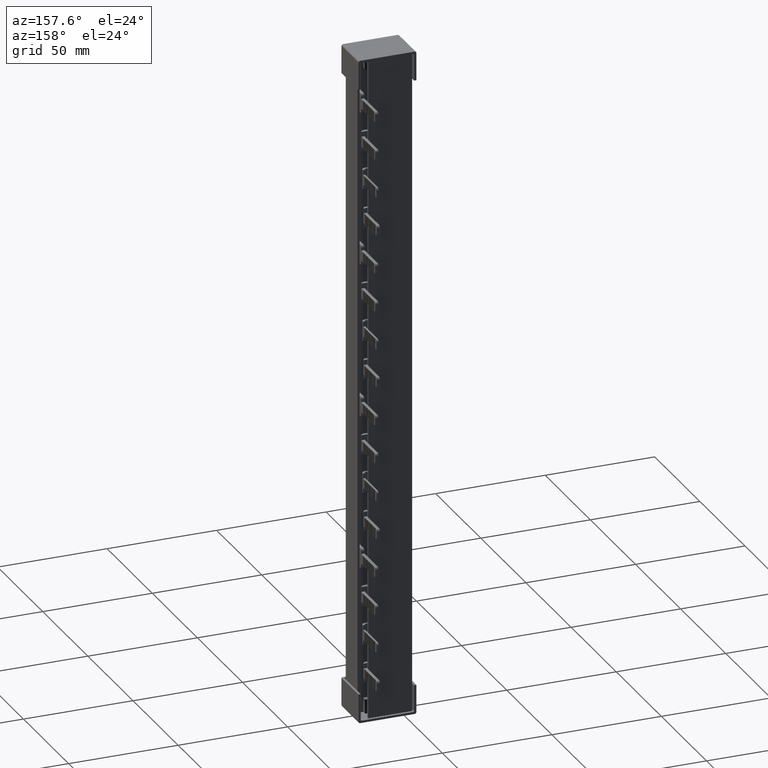
[diagram: clean part render]
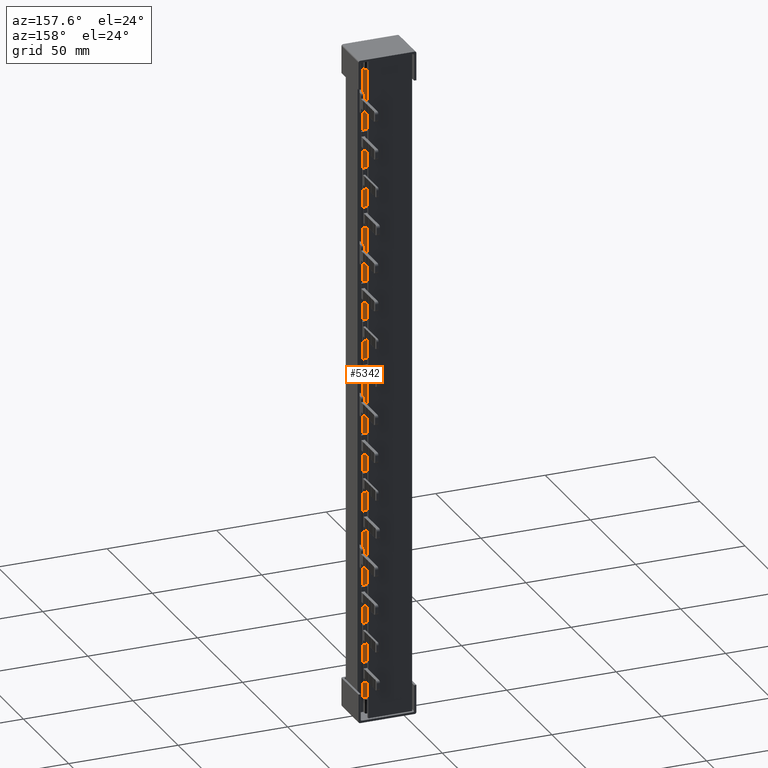
[diagram: same view with one face highlighted and labeled with its STEP entity id]
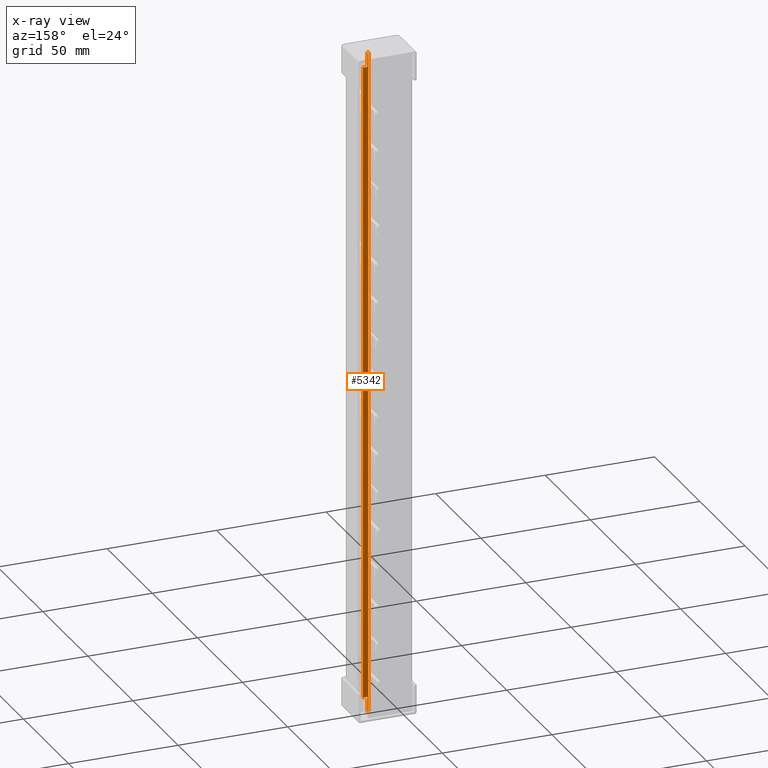
[diagram: x-ray of the same camera — body ghosted, the highlighted face saturated]
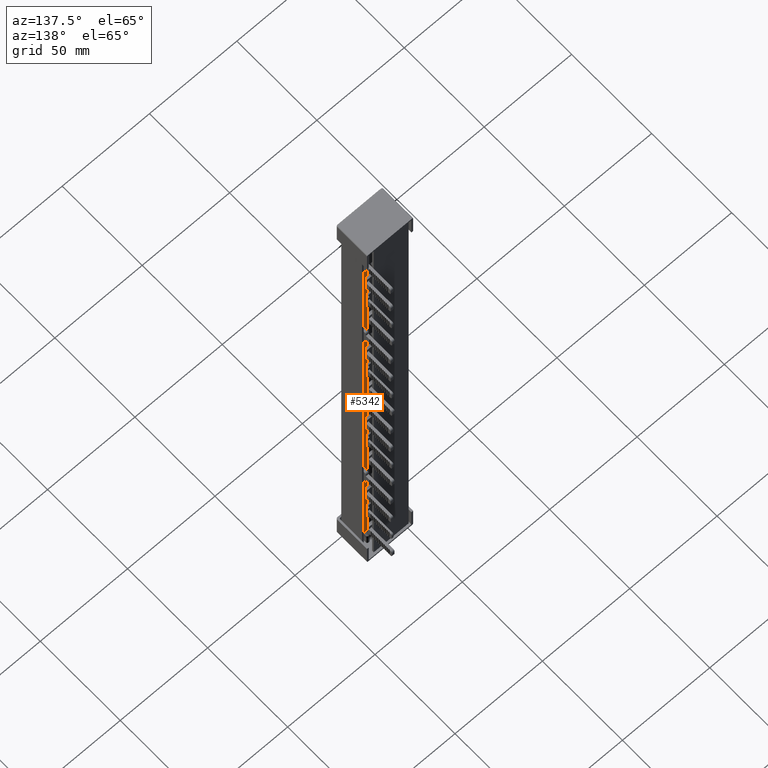
[diagram: same view with one face highlighted and labeled with its STEP entity id]
A machine part, auxiliary view. The second image highlights one B-rep face of the part: STEP entity #5342.
The next image is the same camera in x-ray: the body ghosted, the highlighted face saturated — about 0% of this face is hidden behind the body in this view.
A second angle (auxiliary view) of the same face is appended — the face is thin or edge-on in the first view.
In plain terms, the highlighted planar face has unit normal (0, -1, 0).
Its self-contained STEP definition (entity closure, byte-faithful):
#5342 = ADVANCED_FACE ( 'NONE', ( #18616 ), #18670, .F. ) ;
#5552 = EDGE_CURVE ( 'NONE', #30280, #30393, #8117, .T. ) ;
#5555 = EDGE_CURVE ( 'NONE', #30323, #30293, #8079, .T. ) ;
#5556 = EDGE_CURVE ( 'NONE', #30320, #30328, #8109, .T. ) ;
#5563 = EDGE_CURVE ( 'NONE', #30293, #30290, #8113, .T. ) ;
#5564 = EDGE_CURVE ( 'NONE', #30327, #30323, #8100, .T. ) ;
#5565 = EDGE_CURVE ( 'NONE', #30308, #30393, #8097, .T. ) ;
#5570 = EDGE_CURVE ( 'NONE', #30301, #30327, #8153, .T. ) ;
#5571 = EDGE_CURVE ( 'NONE', #30280, #30301, #8130, .T. ) ;
#5576 = EDGE_CURVE ( 'NONE', #30328, #30338, #8164, .T. ) ;
#5583 = EDGE_CURVE ( 'NONE', #30317, #30308, #8171, .T. ) ;
#5586 = EDGE_CURVE ( 'NONE', #30338, #30317, #8175, .T. ) ;
#5596 = EDGE_CURVE ( 'NONE', #30290, #30320, #8211, .T. ) ;
#8077 = CARTESIAN_POINT ( 'NONE',  ( 19.35426421328950800, 9.213125402746978700, 0.0000000000000000000 ) ) ;
#8078 = CARTESIAN_POINT ( 'NONE',  ( 326.4453648697773900, 9.213125402746978700, 304.0000000000000000 ) ) ;
#8079 = LINE ( 'NONE', #8077, #32882 ) ;
#8081 = CARTESIAN_POINT ( 'NONE',  ( 17.00000000000001400, 9.213125402746980400, 306.0000000000000000 ) ) ;
#8083 = DIRECTION ( 'NONE',  ( 0.0000000000000000000, -0.0000000000000000000, -1.000000000000000000 ) ) ;
#8088 = DIRECTION ( 'NONE',  ( -1.000000000000000000, -0.0000000000000000000, -0.0000000000000000000 ) ) ;
#8096 = CARTESIAN_POINT ( 'NONE',  ( 326.4453648697773900, 9.213125402746978700, 6.161737786669618800E-012 ) ) ;
#8097 = LINE ( 'NONE', #8101, #32859 ) ;
#8098 = DIRECTION ( 'NONE',  ( 0.0000000000000000000, 0.0000000000000000000, 1.000000000000000000 ) ) ;
#8100 = LINE ( 'NONE', #8111, #32899 ) ;
#8101 = CARTESIAN_POINT ( 'NONE',  ( 326.4453648697773900, 9.213125402746978700, 304.0000000000000000 ) ) ;
#8108 = DIRECTION ( 'NONE',  ( 1.000000000000000000, 0.0000000000000000000, 0.0000000000000000000 ) ) ;
#8109 = LINE ( 'NONE', #8078, #32880 ) ;
#8111 = CARTESIAN_POINT ( 'NONE',  ( 326.4453648697773900, 9.213125402746978700, 6.500000000005529800 ) ) ;
#8113 = LINE ( 'NONE', #8096, #32914 ) ;
#8114 = DIRECTION ( 'NONE',  ( -1.000000000000000000, -0.0000000000000000000, -0.0000000000000000000 ) ) ;
#8117 = LINE ( 'NONE', #8081, #32855 ) ;
#8119 = DIRECTION ( 'NONE',  ( 1.000000000000000000, 0.0000000000000000000, 0.0000000000000000000 ) ) ;
#8122 = CARTESIAN_POINT ( 'NONE',  ( 17.45426421329149100, 9.213125402746978700, 0.0000000000000000000 ) ) ;
#8126 = DIRECTION ( 'NONE',  ( 0.0000000000000000000, -0.0000000000000000000, -1.000000000000000000 ) ) ;
#8128 = CARTESIAN_POINT ( 'NONE',  ( 326.4453648697773900, 9.213125402746978700, 5.380126899480927000E-012 ) ) ;
#8130 = LINE ( 'NONE', #8128, #32912 ) ;
#8144 = DIRECTION ( 'NONE',  ( -0.0000000000000000000, 0.0000000000000000000, 1.000000000000000000 ) ) ;
#8146 = DIRECTION ( 'NONE',  ( 1.000000000000000000, 0.0000000000000000000, 0.0000000000000000000 ) ) ;
#8153 = LINE ( 'NONE', #8122, #32917 ) ;
#8155 = CARTESIAN_POINT ( 'NONE',  ( 19.35426421329061600, 9.213125402746978700, -2.000000000000000000 ) ) ;
#8164 = LINE ( 'NONE', #8155, #32961 ) ;
#8171 = LINE ( 'NONE', #8184, #32932 ) ;
#8173 = DIRECTION ( 'NONE',  ( -0.0000000000000000000, 0.0000000000000000000, 1.000000000000000000 ) ) ;
#8175 = LINE ( 'NONE', #8206, #32973 ) ;
#8184 = CARTESIAN_POINT ( 'NONE',  ( 17.45426421328938500, 9.213125402746978700, -2.000000000000000000 ) ) ;
#8195 = DIRECTION ( 'NONE',  ( 0.0000000000000000000, 0.0000000000000000000, 1.000000000000000000 ) ) ;
#8201 = CARTESIAN_POINT ( 'NONE',  ( 19.46414067534344700, 9.213125402747000000, 306.0000000000000000 ) ) ;
#8203 = DIRECTION ( 'NONE',  ( -1.000000000000000000, -0.0000000000000000000, -0.0000000000000000000 ) ) ;
#8206 = CARTESIAN_POINT ( 'NONE',  ( 326.4453648697773900, 9.213125402746978700, 297.4999999999938600 ) ) ;
#8211 = LINE ( 'NONE', #8201, #32950 ) ;
#18616 = FACE_OUTER_BOUND ( 'NONE', #31029, .T. ) ;
#18624 = CARTESIAN_POINT ( 'NONE',  ( 326.4453648697773900, 9.213125402746978700, 0.0000000000000000000 ) ) ;
#18649 = DIRECTION ( 'NONE',  ( 0.0000000000000000000, -0.0000000000000000000, -1.000000000000000000 ) ) ;
#18670 = PLANE ( 'NONE',  #32671 ) ;
#18674 = DIRECTION ( 'NONE',  ( 0.0000000000000000000, -1.000000000000000000, 0.0000000000000000000 ) ) ;
#24152 = ORIENTED_EDGE ( 'NONE', *, *, #5565, .F. ) ;
#24153 = ORIENTED_EDGE ( 'NONE', *, *, #5583, .F. ) ;
#24207 = ORIENTED_EDGE ( 'NONE', *, *, #5556, .F. ) ;
#24209 = ORIENTED_EDGE ( 'NONE', *, *, #5552, .T. ) ;
#24221 = ORIENTED_EDGE ( 'NONE', *, *, #5570, .F. ) ;
#24227 = ORIENTED_EDGE ( 'NONE', *, *, #5571, .F. ) ;
#24230 = ORIENTED_EDGE ( 'NONE', *, *, #5596, .F. ) ;
#24240 = ORIENTED_EDGE ( 'NONE', *, *, #5586, .F. ) ;
#24241 = ORIENTED_EDGE ( 'NONE', *, *, #5564, .F. ) ;
#24256 = ORIENTED_EDGE ( 'NONE', *, *, #5576, .F. ) ;
#24259 = ORIENTED_EDGE ( 'NONE', *, *, #5563, .F. ) ;
#24276 = ORIENTED_EDGE ( 'NONE', *, *, #5555, .F. ) ;
#25058 = CARTESIAN_POINT ( 'NONE',  ( 17.00000000000001400, 9.213125402746980400, 303.9999999999972700 ) ) ;
#26308 = CARTESIAN_POINT ( 'NONE',  ( 17.00000000000001400, 9.213125402746980400, 5.381240591968710100E-012 ) ) ;
#26328 = CARTESIAN_POINT ( 'NONE',  ( 19.35426421328963500, 9.213125402746978700, 297.4999999999938600 ) ) ;
#26332 = CARTESIAN_POINT ( 'NONE',  ( 19.35426421328948600, 9.213125402746978700, 6.500000000006167500 ) ) ;
#26333 = CARTESIAN_POINT ( 'NONE',  ( 17.45426421328940200, 9.213125402746978700, 297.4999999999943700 ) ) ;
#26336 = CARTESIAN_POINT ( 'NONE',  ( 19.46414067534354700, 9.213125402746985800, 6.160707713632101500E-012 ) ) ;
#26344 = CARTESIAN_POINT ( 'NONE',  ( 17.45426421328967900, 9.213125402746978700, 6.500000000005529800 ) ) ;
#26346 = CARTESIAN_POINT ( 'NONE',  ( 19.35426421329052700, 9.213125402746978700, 6.157135230488871900E-012 ) ) ;
#26348 = CARTESIAN_POINT ( 'NONE',  ( 17.45426421329148400, 9.213125402746978700, 5.522922074532840900E-012 ) ) ;
#26350 = CARTESIAN_POINT ( 'NONE',  ( 19.46414067534351100, 9.213125402746984000, 303.9999999999985200 ) ) ;
#26356 = CARTESIAN_POINT ( 'NONE',  ( 19.35426421329108100, 9.213125402746978700, 303.9999999999946000 ) ) ;
#26362 = CARTESIAN_POINT ( 'NONE',  ( 17.45426421329147400, 9.213125402746978700, 304.0000000000000000 ) ) ;
#30280 = VERTEX_POINT ( 'NONE', #26308 ) ;
#30290 = VERTEX_POINT ( 'NONE', #26336 ) ;
#30293 = VERTEX_POINT ( 'NONE', #26346 ) ;
#30301 = VERTEX_POINT ( 'NONE', #26348 ) ;
#30308 = VERTEX_POINT ( 'NONE', #26362 ) ;
#30317 = VERTEX_POINT ( 'NONE', #26333 ) ;
#30320 = VERTEX_POINT ( 'NONE', #26350 ) ;
#30323 = VERTEX_POINT ( 'NONE', #26332 ) ;
#30327 = VERTEX_POINT ( 'NONE', #26344 ) ;
#30328 = VERTEX_POINT ( 'NONE', #26356 ) ;
#30338 = VERTEX_POINT ( 'NONE', #26328 ) ;
#30393 = VERTEX_POINT ( 'NONE', #25058 ) ;
#31029 = EDGE_LOOP ( 'NONE', ( #24207, #24230, #24259, #24276, #24241, #24221, #24227, #24209, #24152, #24153, #24240, #24256 ) ) ;
#32671 = AXIS2_PLACEMENT_3D ( 'NONE', #18624, #18674, #18649 ) ;
#32855 = VECTOR ( 'NONE', #8098, 1000.000000000000000 ) ;
#32859 = VECTOR ( 'NONE', #8114, 1000.000000000000000 ) ;
#32880 = VECTOR ( 'NONE', #8088, 1000.000000000000000 ) ;
#32882 = VECTOR ( 'NONE', #8083, 1000.000000000000000 ) ;
#32899 = VECTOR ( 'NONE', #8108, 1000.000000000000000 ) ;
#32912 = VECTOR ( 'NONE', #8146, 1000.000000000000000 ) ;
#32914 = VECTOR ( 'NONE', #8119, 1000.000000000000000 ) ;
#32917 = VECTOR ( 'NONE', #8144, 1000.000000000000000 ) ;
#32932 = VECTOR ( 'NONE', #8173, 1000.000000000000000 ) ;
#32950 = VECTOR ( 'NONE', #8195, 1000.000000000000000 ) ;
#32961 = VECTOR ( 'NONE', #8126, 1000.000000000000000 ) ;
#32973 = VECTOR ( 'NONE', #8203, 1000.000000000000000 ) ;